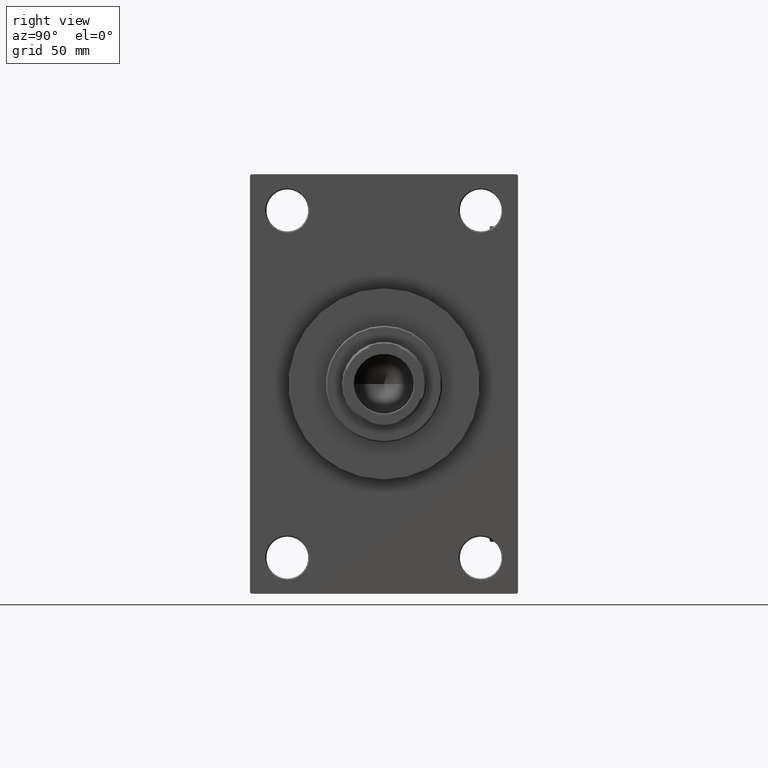
[diagram: clean part render]
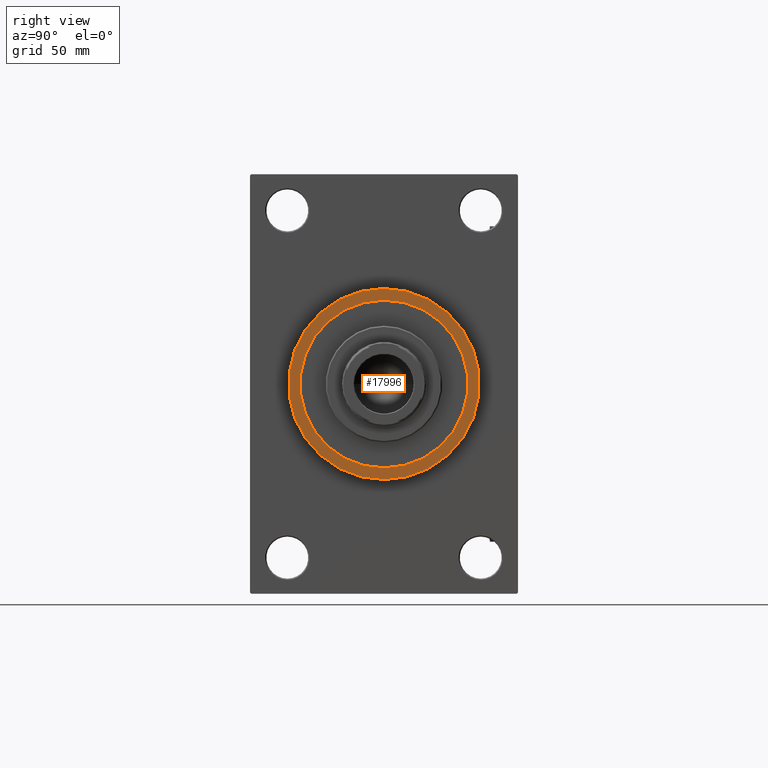
[diagram: same view with one face highlighted and labeled with its STEP entity id]
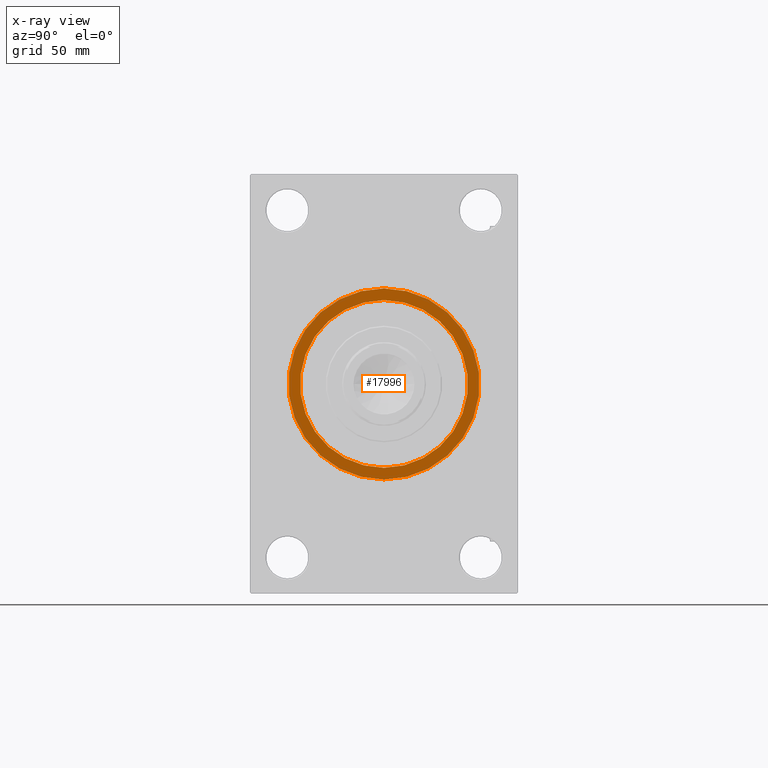
[diagram: x-ray of the same camera — body ghosted, the highlighted face saturated]
A machine part, right view. The second image highlights one B-rep face of the part: STEP entity #17996.
The next image is the same camera in x-ray: the body ghosted, the highlighted face saturated — about 0% of this face is hidden behind the body in this view.
In plain terms, the highlighted planar face has unit normal (1, 0, 0).
Its self-contained STEP definition (entity closure, byte-faithful):
#1364 = DIRECTION ( 'NONE',  ( 1.000000000000000000, 0.000000000000000000, 0.000000000000000000 ) ) ;
#3759 = DIRECTION ( 'NONE',  ( 1.000000000000000000, 0.000000000000000000, 0.000000000000000000 ) ) ;
#5580 = EDGE_LOOP ( 'NONE', ( #19722, #49355 ) ) ;
#6483 = VERTEX_POINT ( 'NONE', #24479 ) ;
#8618 = CIRCLE ( 'NONE', #12649, 41.00000000000000000 ) ;
#10045 = CARTESIAN_POINT ( 'NONE',  ( 179.0000000000000000, 0.000000000000000000, 0.000000000000000000 ) ) ;
#11233 = AXIS2_PLACEMENT_3D ( 'NONE', #33945, #15054, #18813 ) ;
#11827 = FACE_BOUND ( 'NONE', #27131, .T. ) ;
#12071 = CARTESIAN_POINT ( 'NONE',  ( 179.0000000000000000, 0.000000000000000000, 0.000000000000000000 ) ) ;
#12649 = AXIS2_PLACEMENT_3D ( 'NONE', #10045, #21376, #25653 ) ;
#12760 = CIRCLE ( 'NONE', #33660, 36.00000000000000000 ) ;
#13207 = DIRECTION ( 'NONE',  ( 0.000000000000000000, 0.000000000000000000, -1.000000000000000000 ) ) ;
#13642 = AXIS2_PLACEMENT_3D ( 'NONE', #20414, #15401, #31760 ) ;
#13648 = ORIENTED_EDGE ( 'NONE', *, *, #37690, .F. ) ;
#14696 = EDGE_CURVE ( 'NONE', #42544, #21069, #12760, .T. ) ;
#15054 = DIRECTION ( 'NONE',  ( 1.000000000000000000, 0.000000000000000000, 0.000000000000000000 ) ) ;
#15129 = DIRECTION ( 'NONE',  ( 0.000000000000000000, 0.000000000000000000, -1.000000000000000000 ) ) ;
#15401 = DIRECTION ( 'NONE',  ( 1.000000000000000000, 0.000000000000000000, 0.000000000000000000 ) ) ;
#15412 = EDGE_CURVE ( 'NONE', #39373, #6483, #8618, .T. ) ;
#15614 = FACE_OUTER_BOUND ( 'NONE', #5580, .T. ) ;
#16367 = AXIS2_PLACEMENT_3D ( 'NONE', #12071, #3759, #15129 ) ;
#17996 = ADVANCED_FACE ( 'NONE', ( #11827, #15614 ), #39038, .T. ) ;
#18813 = DIRECTION ( 'NONE',  ( 0.000000000000000000, 0.000000000000000000, -1.000000000000000000 ) ) ;
#19722 = ORIENTED_EDGE ( 'NONE', *, *, #15412, .T. ) ;
#20414 = CARTESIAN_POINT ( 'NONE',  ( 179.0000000000000000, 0.000000000000000000, 0.000000000000000000 ) ) ;
#21069 = VERTEX_POINT ( 'NONE', #24485 ) ;
#21376 = DIRECTION ( 'NONE',  ( 1.000000000000000000, 0.000000000000000000, 0.000000000000000000 ) ) ;
#24479 = CARTESIAN_POINT ( 'NONE',  ( 179.0000000000000000, 5.021051876504148963E-15, -41.00000000000000000 ) ) ;
#24485 = CARTESIAN_POINT ( 'NONE',  ( 179.0000000000000000, 0.000000000000000000, -36.00000000000000000 ) ) ;
#25653 = DIRECTION ( 'NONE',  ( 0.000000000000000000, 0.000000000000000000, -1.000000000000000000 ) ) ;
#27131 = EDGE_LOOP ( 'NONE', ( #13648, #31505 ) ) ;
#29723 = CIRCLE ( 'NONE', #11233, 36.00000000000000000 ) ;
#31505 = ORIENTED_EDGE ( 'NONE', *, *, #14696, .F. ) ;
#31760 = DIRECTION ( 'NONE',  ( 0.000000000000000000, 0.000000000000000000, -1.000000000000000000 ) ) ;
#32125 = CARTESIAN_POINT ( 'NONE',  ( 179.0000000000000000, 4.408728476930470856E-15, 36.00000000000000000 ) ) ;
#33660 = AXIS2_PLACEMENT_3D ( 'NONE', #36638, #1364, #13207 ) ;
#33945 = CARTESIAN_POINT ( 'NONE',  ( 179.0000000000000000, 0.000000000000000000, 0.000000000000000000 ) ) ;
#36638 = CARTESIAN_POINT ( 'NONE',  ( 179.0000000000000000, 0.000000000000000000, 0.000000000000000000 ) ) ;
#36998 = CIRCLE ( 'NONE', #13642, 41.00000000000000000 ) ;
#37517 = CARTESIAN_POINT ( 'NONE',  ( 179.0000000000000000, 0.000000000000000000, 41.00000000000000000 ) ) ;
#37690 = EDGE_CURVE ( 'NONE', #21069, #42544, #29723, .T. ) ;
#39038 = PLANE ( 'NONE',  #16367 ) ;
#39373 = VERTEX_POINT ( 'NONE', #37517 ) ;
#42544 = VERTEX_POINT ( 'NONE', #32125 ) ;
#43135 = EDGE_CURVE ( 'NONE', #6483, #39373, #36998, .T. ) ;
#49355 = ORIENTED_EDGE ( 'NONE', *, *, #43135, .T. ) ;